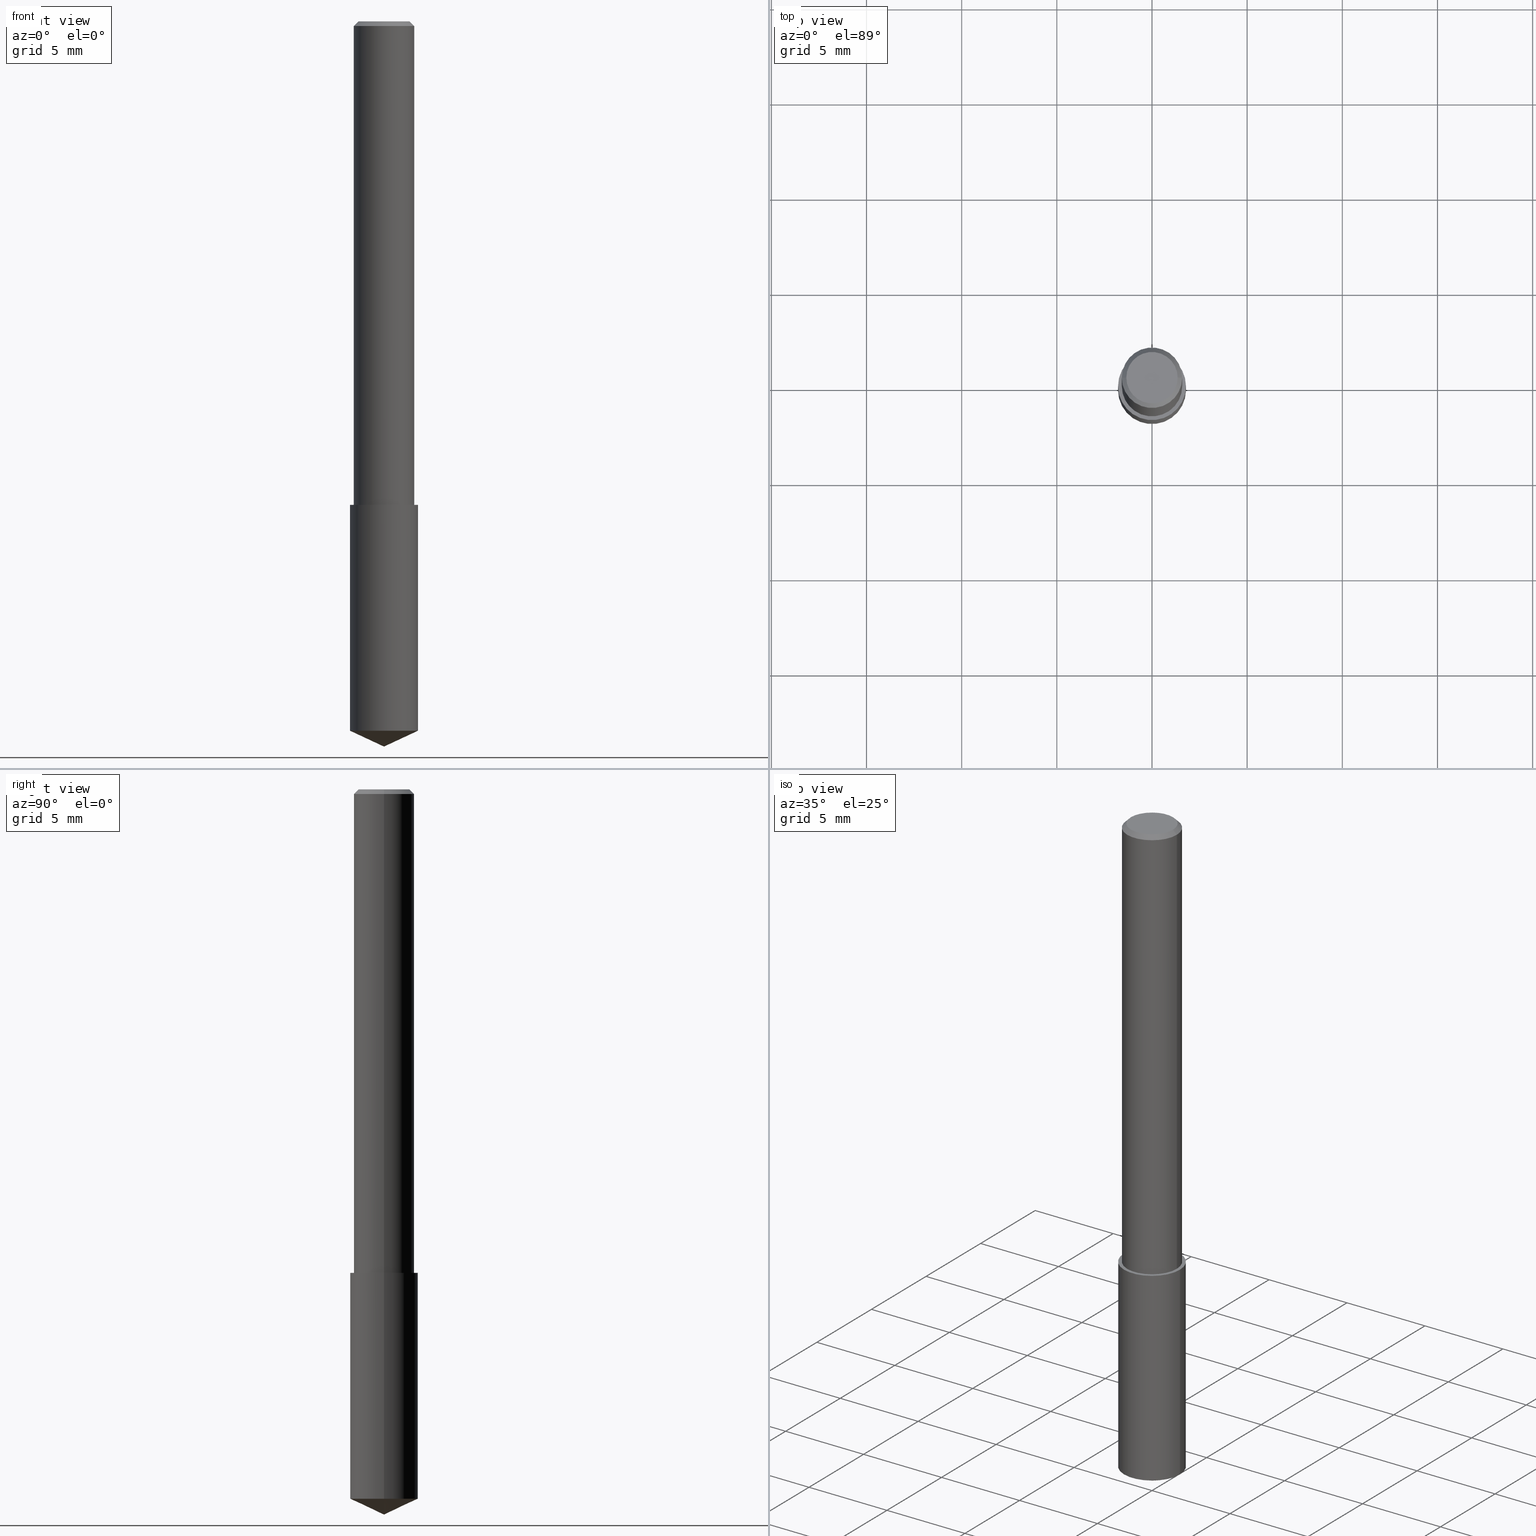
[diagram: canonical four-view strip — front | top / right | iso, engineering-drawing reading convention]
A machine part, canonical four-view strip (front | top / right | iso — engineering-drawing reading convention). The complete STEP part file that produces these views, byte-faithful:
ISO-10303-21;
HEADER;
FILE_DESCRIPTION (( 'STEP AP203' ),
    '1' );
FILE_NAME ('06080.STEP',
    '2024-04-30T18:19:43',
    ( '' ),
    ( '' ),
    'SwSTEP 2.0',
    'SolidWorks 2023',
    '' );
FILE_SCHEMA (( 'CONFIG_CONTROL_DESIGN' ));
ENDSEC;

DATA;
#1 = FACE_OUTER_BOUND ( 'NONE', #164, .T. ) ;
#2 = SHAPE_DEFINITION_REPRESENTATION ( #60, #43 ) ;
#3 = ORIENTED_EDGE ( 'NONE', *, *, #47, .T. ) ;
#4 = AXIS2_PLACEMENT_3D ( 'NONE', #227, #20, #202 ) ;
#5 = CYLINDRICAL_SURFACE ( 'NONE', #198, 0.06250000000000006939 ) ;
#6 = VERTEX_POINT ( 'NONE', #95 ) ;
#7 = DIRECTION ( 'NONE',  ( -2.445468806185136877E-29, 3.491481338843145188E-15, 1.000000000000000000 ) ) ;
#8 = VERTEX_POINT ( 'NONE', #278 ) ;
#9 = EDGE_CURVE ( 'NONE', #214, #322, #270, .T. ) ;
#10 = VERTEX_POINT ( 'NONE', #34 ) ;
#11 = DATE_AND_TIME ( #91, #316 ) ;
#12 = ORIENTED_EDGE ( 'NONE', *, *, #224, .T. ) ;
#13 = AXIS2_PLACEMENT_3D ( 'NONE', #111, #314, #231 ) ;
#14 = ORGANIZATION ( 'UNSPECIFIED', 'UNSPECIFIED', '' ) ;
#15 = ADVANCED_FACE ( 'NONE', ( #220 ), #141, .T. ) ;
#16 = CARTESIAN_POINT ( 'NONE',  ( 2.445468806185137438E-29, -3.491481338843146371E-15, -1.000000000000000222 ) ) ;
#17 = UNCERTAINTY_MEASURE_WITH_UNIT (LENGTH_MEASURE( 1.000000000000000082E-05 ), #181, 'distance_accuracy_value', 'NONE');
#18 = AXIS2_PLACEMENT_3D ( 'NONE', #261, #211, #264 ) ;
#19 = EDGE_CURVE ( 'NONE', #41, #88, #302, .T. ) ;
#20 = DIRECTION ( 'NONE',  ( -2.445468806185136597E-29, 3.491481338843145583E-15, 1.000000000000000000 ) ) ;
#21 = DATE_TIME_ROLE ( 'creation_date' ) ;
#22 = AXIS2_PLACEMENT_3D ( 'NONE', #81, #317, #233 ) ;
#23 = DIRECTION ( 'NONE',  ( -2.445468806185136597E-29, 3.491481338843145583E-15, 1.000000000000000000 ) ) ;
#24 = DIMENSIONAL_EXPONENTS ( 1.000000000000000000, 0.000000000000000000, 0.000000000000000000, 0.000000000000000000, 0.000000000000000000, 0.000000000000000000, 0.000000000000000000 ) ;
#25 = DIRECTION ( 'NONE',  ( -2.445468806185136597E-29, 3.491481338843145583E-15, 1.000000000000000000 ) ) ;
#26 = FACE_OUTER_BOUND ( 'NONE', #262, .T. ) ;
#27 = DIRECTION ( 'NONE',  ( -2.438088387897960049E-29, 3.491481338843145188E-15, 1.000000000000000000 ) ) ;
#28 = CIRCLE ( 'NONE', #18, 0.06250000000000000000 ) ;
#29 = DIRECTION ( 'NONE',  ( 1.000000000000000000, -6.982962677686265133E-15, 0.000000000000000000 ) ) ;
#30 = DATE_AND_TIME ( #138, #84 ) ;
#31 = APPROVAL ( #117, 'UNSPECIFIED' ) ;
#32 = LINE ( 'NONE', #339, #288 ) ;
#33 = ORIENTED_EDGE ( 'NONE', *, *, #19, .T. ) ;
#34 = CARTESIAN_POINT ( 'NONE',  ( 0.06250000000000012490, -3.927916506198539224E-15, -1.000000000000000222 ) ) ;
#35 = ADVANCED_FACE ( 'NONE', ( #254 ), #206, .F. ) ;
#36 = PERSON_AND_ORGANIZATION ( #244, #14 ) ;
#37 = SECURITY_CLASSIFICATION ( '', '', #146 ) ;
#38 = ORIENTED_EDGE ( 'NONE', *, *, #100, .T. ) ;
#39 = ORIENTED_EDGE ( 'NONE', *, *, #9, .T. ) ;
#40 = APPROVAL ( #257, 'UNSPECIFIED' ) ;
#41 = VERTEX_POINT ( 'NONE', #107 ) ;
#42 = CARTESIAN_POINT ( 'NONE',  ( 0.07030000000000000138, -3.982383615084490924E-15, -1.000000000000000222 ) ) ;
#43 = ADVANCED_BREP_SHAPE_REPRESENTATION ( '06080', ( #92, #90, #247 ), #184 ) ;
#44 = APPROVAL_PERSON_ORGANIZATION ( #169, #31, #265 ) ;
#45 = PERSON_AND_ORGANIZATION ( #244, #14 ) ;
#46 = LINE ( 'NONE', #289, #281 ) ;
#47 = EDGE_CURVE ( 'NONE', #246, #88, #46, .T. ) ;
#48 = CARTESIAN_POINT ( 'NONE',  ( 0.000000000000000000, 0.000000000000000000, 0.000000000000000000 ) ) ;
#49 = FACE_OUTER_BOUND ( 'NONE', #124, .T. ) ;
#50 = LOCAL_TIME ( 14, 19, 43.00000000000000000, #179 ) ;
#51 = DATE_AND_TIME ( #71, #201 ) ;
#52 = DIRECTION ( 'NONE',  ( 0.9063077870366496036, -4.853149677051374846E-15, 0.4226182617407001629 ) ) ;
#53 = DIRECTION ( 'NONE',  ( 1.000000000000000000, -6.982962677686265922E-15, 0.000000000000000000 ) ) ;
#54 = CC_DESIGN_PERSON_AND_ORGANIZATION_ASSIGNMENT ( #36, #275, ( #241 ) ) ;
#55 = DIRECTION ( 'NONE',  ( 1.000000000000000000, -6.982962677686265922E-15, 4.876176775795935793E-29 ) ) ;
#56 = DIRECTION ( 'NONE',  ( -2.445468806185136597E-29, 3.491481338843145583E-15, 1.000000000000000000 ) ) ;
#57 = CIRCLE ( 'NONE', #97, 0.06250000000000012490 ) ;
#58 = DIRECTION ( 'NONE',  ( -2.445468806185136597E-29, 3.491481338843145583E-15, 1.000000000000000000 ) ) ;
#59 = ORIENTED_EDGE ( 'NONE', *, *, #219, .T. ) ;
#60 = PRODUCT_DEFINITION_SHAPE ( 'NONE', 'NONE',  #282 ) ;
#61 = EDGE_CURVE ( 'NONE', #66, #217, #142, .T. ) ;
#62 = ORIENTED_EDGE ( 'NONE', *, *, #167, .F. ) ;
#63 = ORIENTED_EDGE ( 'NONE', *, *, #9, .F. ) ;
#64 = AXIS2_PLACEMENT_3D ( 'NONE', #105, #284, #113 ) ;
#65 = PERSON_AND_ORGANIZATION_ROLE ( 'design_supplier' ) ;
#66 = VERTEX_POINT ( 'NONE', #209 ) ;
#67 = ORIENTED_EDGE ( 'NONE', *, *, #160, .T. ) ;
#68 = AXIS2_PLACEMENT_3D ( 'NONE', #178, #73, #222 ) ;
#69 = ADVANCED_FACE ( 'NONE', ( #263 ), #272, .T. ) ;
#70 = DIRECTION ( 'NONE',  ( 1.000000000000000000, -6.982962677686265133E-15, 0.000000000000000000 ) ) ;
#71 = CALENDAR_DATE ( 2024, 30, 4 ) ;
#72 = FACE_OUTER_BOUND ( 'NONE', #323, .T. ) ;
#73 = DIRECTION ( 'NONE',  ( -2.445468806185136597E-29, 3.491481338843145583E-15, 1.000000000000000000 ) ) ;
#74 = APPROVAL_ROLE ( '' ) ;
#75 = CARTESIAN_POINT ( 'NONE',  ( 2.292627005798582375E-31, -3.273263755165473266E-17, -0.009375000000000069042 ) ) ;
#76 = DIRECTION ( 'NONE',  ( 1.000000000000000000, -6.982962677686265133E-15, 0.000000000000000000 ) ) ;
#77 = APPROVAL_PERSON_ORGANIZATION ( #252, #40, #129 ) ;
#78 = COORDINATED_UNIVERSAL_TIME_OFFSET ( 5, 0, .BEHIND. ) ;
#79 = DIRECTION ( 'NONE',  ( -1.000000000000000000, 6.982962677686265922E-15, -4.876176775795935793E-29 ) ) ;
#80 = DIRECTION ( 'NONE',  ( -2.445468806185136877E-29, 3.491481338843145188E-15, 1.000000000000000000 ) ) ;
#81 = CARTESIAN_POINT ( 'NONE',  ( 3.802253484767616904E-29, -1.548488455724893481E-15, -1.000000000000000222 ) ) ;
#82 = FACE_OUTER_BOUND ( 'NONE', #140, .T. ) ;
#83 = ORIENTED_EDGE ( 'NONE', *, *, #212, .F. ) ;
#84 = LOCAL_TIME ( 14, 19, 43.00000000000000000, #319 ) ;
#85 = AXIS2_PLACEMENT_3D ( 'NONE', #269, #318, #235 ) ;
#86 = DIRECTION ( 'NONE',  ( -2.445468806185136597E-29, 3.491481338843145583E-15, 1.000000000000000000 ) ) ;
#87 = EDGE_CURVE ( 'NONE', #6, #325, #287, .T. ) ;
#88 = VERTEX_POINT ( 'NONE', #253 ) ;
#89 = CARTESIAN_POINT ( 'NONE',  ( 0.000000000000000000, 0.000000000000000000, 0.000000000000000000 ) ) ;
#90 = MANIFOLD_SOLID_BREP ( 'Body-Move/Copy2[2]', #285 ) ;
#91 = CALENDAR_DATE ( 2024, 30, 4 ) ;
#92 = MANIFOLD_SOLID_BREP ( 'Body-Move/Copy2[1]', #139 ) ;
#93 = ORIENTED_EDGE ( 'NONE', *, *, #219, .F. ) ;
#94 = DATE_AND_TIME ( #121, #338 ) ;
#95 = CARTESIAN_POINT ( 'NONE',  ( -0.05312499999999999861, 3.873362110279099094E-16, 3.061616995216862494E-21 ) ) ;
#96 = CC_DESIGN_APPROVAL ( #31, ( #37 ) ) ;
#97 = AXIS2_PLACEMENT_3D ( 'NONE', #286, #25, #131 ) ;
#98 = ORIENTED_EDGE ( 'NONE', *, *, #19, .F. ) ;
#99 = CC_DESIGN_PERSON_AND_ORGANIZATION_ASSIGNMENT ( #45, #185, ( #282 ) ) ;
#100 = EDGE_CURVE ( 'NONE', #10, #322, #158, .T. ) ;
#101 = CARTESIAN_POINT ( 'NONE',  ( 0.06250000000000000000, -4.691678049070464390E-16, -0.009375000000000069042 ) ) ;
#102 = COORDINATED_UNIVERSAL_TIME_OFFSET ( 5, 0, .BEHIND. ) ;
#103 = CIRCLE ( 'NONE', #333, 0.06250000000000000000 ) ;
#104 = CARTESIAN_POINT ( 'NONE',  ( 2.445468806185137438E-29, -3.491481338843146371E-15, -1.000000000000000222 ) ) ;
#105 = CARTESIAN_POINT ( 'NONE',  ( 2.292627005798582375E-31, -3.273263755165473266E-17, -0.009375000000000069042 ) ) ;
#106 = APPLICATION_PROTOCOL_DEFINITION ( 'international standard', 'config_control_design', 1994, #232 ) ;
#107 = CARTESIAN_POINT ( 'NONE',  ( -0.07030000000000000138, -4.623254719616837118E-15, -1.467218571631703661 ) ) ;
#108 = CC_DESIGN_PERSON_AND_ORGANIZATION_ASSIGNMENT ( #326, #65, ( #241 ) ) ;
#109 = CONICAL_SURFACE ( 'NONE', #134, 84.42940631927376671, 1.134464013796313342 ) ;
#110 = AXIS2_PLACEMENT_3D ( 'NONE', #186, #27, #55 ) ;
#111 = CARTESIAN_POINT ( 'NONE',  ( 2.292627005798582375E-31, -3.273263755165473266E-17, -0.009375000000000069042 ) ) ;
#112 = APPLICATION_PROTOCOL_DEFINITION ( 'international standard', 'config_control_design', 1994, #248 ) ;
#113 = DIRECTION ( 'NONE',  ( -1.000000000000000000, 6.982962677686266711E-15, 0.000000000000000000 ) ) ;
#114 = CYLINDRICAL_SURFACE ( 'NONE', #327, 0.06250000000000006939 ) ;
#115 = ORIENTED_EDGE ( 'NONE', *, *, #204, .F. ) ;
#116 = ADVANCED_FACE ( 'NONE', ( #72 ), #126, .T. ) ;
#117 = APPROVAL_STATUS ( 'not_yet_approved' ) ;
#118 = ORIENTED_EDGE ( 'NONE', *, *, #212, .T. ) ;
#119 = CARTESIAN_POINT ( 'NONE',  ( 3.668203209277704895E-29, -5.237222008264718177E-15, -1.500000000000000222 ) ) ;
#120 = DIRECTION ( 'NONE',  ( 0.7071067811865450192, -7.319954787623246579E-15, -0.7071067811865500152 ) ) ;
#121 = CALENDAR_DATE ( 2024, 30, 4 ) ;
#122 = ORIENTED_EDGE ( 'NONE', *, *, #100, .F. ) ;
#123 = APPROVAL ( #203, 'UNSPECIFIED' ) ;
#124 = EDGE_LOOP ( 'NONE', ( #170, #12, #190 ) ) ;
#125 = FACE_OUTER_BOUND ( 'NONE', #171, .T. ) ;
#126 = CONICAL_SURFACE ( 'NONE', #64, 0.06250000000000000000, 0.7853981633974447263 ) ;
#127 = CC_DESIGN_APPROVAL ( #123, ( #282 ) ) ;
#128 =( LENGTH_UNIT ( ) NAMED_UNIT ( * ) SI_UNIT ( $, .METRE. ) );
#129 = APPROVAL_ROLE ( '' ) ;
#130 = CARTESIAN_POINT ( 'NONE',  ( 0.06250000000000006939, -4.364351673553921624E-16, 3.047610484872463374E-30 ) ) ;
#131 = DIRECTION ( 'NONE',  ( 1.000000000000000000, -6.982962677686264344E-15, 0.000000000000000000 ) ) ;
#132 = EDGE_CURVE ( 'NONE', #6, #214, #313, .T. ) ;
#133 = CARTESIAN_POINT ( 'NONE',  ( -3.743544432386672853E-50, 5.344789307371238476E-36, 1.530808498934197599E-21 ) ) ;
#134 = AXIS2_PLACEMENT_3D ( 'NONE', #258, #334, #53 ) ;
#135 = CIRCLE ( 'NONE', #85, 0.05312499999999999861 ) ;
#136 = AXIS2_PLACEMENT_3D ( 'NONE', #188, #23, #70 ) ;
#137 = CARTESIAN_POINT ( 'NONE',  ( 0.05312499999999999861, -4.129888592719939842E-16, 3.061617000609493422E-21 ) ) ;
#138 = CALENDAR_DATE ( 2024, 30, 4 ) ;
#139 = CLOSED_SHELL ( 'NONE', ( #332, #149, #324, #15, #35 ) ) ;
#140 = EDGE_LOOP ( 'NONE', ( #115, #67, #38, #93 ) ) ;
#141 = CYLINDRICAL_SURFACE ( 'NONE', #154, 0.07030000000000000138 ) ;
#142 = CIRCLE ( 'NONE', #136, 0.07030000000000000138 ) ;
#143 = COORDINATED_UNIVERSAL_TIME_OFFSET ( 5, 0, .BEHIND. ) ;
#144 = ORIENTED_EDGE ( 'NONE', *, *, #87, .F. ) ;
#145 = DESIGN_CONTEXT ( 'detailed design', #248, 'design' ) ;
#146 = SECURITY_CLASSIFICATION_LEVEL ( 'unclassified' ) ;
#147 = EDGE_LOOP ( 'NONE', ( #187, #274 ) ) ;
#148 = ORIENTED_EDGE ( 'NONE', *, *, #87, .T. ) ;
#149 = ADVANCED_FACE ( 'NONE', ( #49 ), #109, .T. ) ;
#150 = DIRECTION ( 'NONE',  ( 1.000000000000000000, -6.982962677686265922E-15, 0.000000000000000000 ) ) ;
#151 = DATE_AND_TIME ( #256, #50 ) ;
#152 = ADVANCED_FACE ( 'NONE', ( #26 ), #309, .F. ) ;
#153 = MECHANICAL_CONTEXT ( 'NONE', #232, 'mechanical' ) ;
#154 = AXIS2_PLACEMENT_3D ( 'NONE', #16, #291, #76 ) ;
#155 = APPROVAL_PERSON_ORGANIZATION ( #267, #123, #74 ) ;
#156 = CC_DESIGN_PERSON_AND_ORGANIZATION_ASSIGNMENT ( #245, #193, ( #37 ) ) ;
#157 = APPROVAL_DATE_TIME ( #51, #123 ) ;
#158 = LINE ( 'NONE', #130, #173 ) ;
#159 = FACE_OUTER_BOUND ( 'NONE', #328, .T. ) ;
#160 = EDGE_CURVE ( 'NONE', #8, #10, #249, .T. ) ;
#161 = VECTOR ( 'NONE', #310, 39.37007874015748143 ) ;
#162 = DIRECTION ( 'NONE',  ( 1.000000000000000000, -6.982962677686266711E-15, 4.876176775795935793E-29 ) ) ;
#163 = ORIENTED_EDGE ( 'NONE', *, *, #194, .T. ) ;
#164 = EDGE_LOOP ( 'NONE', ( #242, #320, #293, #122 ) ) ;
#165 = CARTESIAN_POINT ( 'NONE',  ( -0.07030000000000000138, -2.991969795603796128E-15, -1.000000000000000222 ) ) ;
#166 = ORIENTED_EDGE ( 'NONE', *, *, #224, .F. ) ;
#167 = EDGE_CURVE ( 'NONE', #10, #8, #57, .T. ) ;
#168 = AXIS2_PLACEMENT_3D ( 'NONE', #208, #205, #290 ) ;
#169 = PERSON_AND_ORGANIZATION ( #244, #14 ) ;
#170 = ORIENTED_EDGE ( 'NONE', *, *, #47, .F. ) ;
#171 = EDGE_LOOP ( 'NONE', ( #195, #118, #199, #243 ) ) ;
#172 = ADVANCED_FACE ( 'NONE', ( #159 ), #311, .F. ) ;
#173 = VECTOR ( 'NONE', #177, 39.37007874015748143 ) ;
#174 = VECTOR ( 'NONE', #80, 39.37007874015748143 ) ;
#175 = AXIS2_PLACEMENT_3D ( 'NONE', #213, #86, #176 ) ;
#176 = DIRECTION ( 'NONE',  ( 1.000000000000000000, -6.982962677686265133E-15, 0.000000000000000000 ) ) ;
#177 = DIRECTION ( 'NONE',  ( -2.445468806185136877E-29, 3.491481338843145188E-15, 1.000000000000000000 ) ) ;
#178 = CARTESIAN_POINT ( 'NONE',  ( 2.445468806185137438E-29, -3.491481338843146371E-15, -1.000000000000000222 ) ) ;
#179 = COORDINATED_UNIVERSAL_TIME_OFFSET ( 5, 0, .BEHIND. ) ;
#180 = DIRECTION ( 'NONE',  ( -2.445468806185136597E-29, 3.491481338843145583E-15, 1.000000000000000000 ) ) ;
#181 =( CONVERSION_BASED_UNIT ( 'INCH', #226 ) LENGTH_UNIT ( ) NAMED_UNIT ( #24 ) );
#182 = DIRECTION ( 'NONE',  ( 0.000000000000000000, 0.000000000000000000, 1.000000000000000000 ) ) ;
#183 = DIRECTION ( 'NONE',  ( -2.445468806185136597E-29, 3.491481338843145583E-15, 1.000000000000000000 ) ) ;
#184 =( GEOMETRIC_REPRESENTATION_CONTEXT ( 3 ) GLOBAL_UNCERTAINTY_ASSIGNED_CONTEXT ( ( #17 ) ) GLOBAL_UNIT_ASSIGNED_CONTEXT ( ( #181, #251, #228 ) ) REPRESENTATION_CONTEXT ( 'NONE', 'WORKASPACE' ) );
#185 = PERSON_AND_ORGANIZATION_ROLE ( 'creator' ) ;
#186 = CARTESIAN_POINT ( 'NONE',  ( 2.445468806185137438E-29, -3.491481338843146371E-15, -1.000000000000000222 ) ) ;
#187 = ORIENTED_EDGE ( 'NONE', *, *, #61, .T. ) ;
#188 = CARTESIAN_POINT ( 'NONE',  ( 2.445468806185136877E-29, -3.491481338843145977E-15, -1.000000000000000222 ) ) ;
#189 = DIRECTION ( 'NONE',  ( -2.445468806185136597E-29, 3.491481338843145583E-15, 1.000000000000000000 ) ) ;
#190 = ORIENTED_EDGE ( 'NONE', *, *, #277, .F. ) ;
#191 = ORIENTED_EDGE ( 'NONE', *, *, #306, .T. ) ;
#192 = CARTESIAN_POINT ( 'NONE',  ( 3.588037248780843606E-29, -5.122766262856188544E-15, -1.467218571631703661 ) ) ;
#193 = PERSON_AND_ORGANIZATION_ROLE ( 'classification_officer' ) ;
#194 = EDGE_CURVE ( 'NONE', #322, #325, #103, .T. ) ;
#195 = ORIENTED_EDGE ( 'NONE', *, *, #277, .T. ) ;
#196 = AXIS2_PLACEMENT_3D ( 'NONE', #104, #180, #234 ) ;
#197 = EDGE_LOOP ( 'NONE', ( #63, #301, #148, #59 ) ) ;
#198 = AXIS2_PLACEMENT_3D ( 'NONE', #295, #58, #162 ) ;
#199 = ORIENTED_EDGE ( 'NONE', *, *, #61, .F. ) ;
#200 = CC_DESIGN_DATE_AND_TIME_ASSIGNMENT ( #94, #298, ( #37 ) ) ;
#201 = LOCAL_TIME ( 14, 19, 43.00000000000000000, #78 ) ;
#202 = DIRECTION ( 'NONE',  ( 1.000000000000000000, -6.982962677686265133E-15, 0.000000000000000000 ) ) ;
#203 = APPROVAL_STATUS ( 'not_yet_approved' ) ;
#204 = EDGE_CURVE ( 'NONE', #8, #325, #32, .T. ) ;
#205 = DIRECTION ( 'NONE',  ( -2.445468806185136597E-29, 3.491481338843145583E-15, 1.000000000000000000 ) ) ;
#206 = PLANE ( 'NONE',  #22 ) ;
#207 = DIRECTION ( 'NONE',  ( -2.445468806185136597E-29, 3.491481338843145583E-15, 1.000000000000000000 ) ) ;
#208 = CARTESIAN_POINT ( 'NONE',  ( -7.487088864773345706E-50, 1.068957861474247695E-35, 3.061616997868395197E-21 ) ) ;
#209 = CARTESIAN_POINT ( 'NONE',  ( 0.07030000000000000138, -3.982383615084490136E-15, -1.000000000000000222 ) ) ;
#210 = DIRECTION ( 'NONE',  ( -0.7071067811865450192, 2.468850131082230634E-15, -0.7071067811865500152 ) ) ;
#211 = DIRECTION ( 'NONE',  ( -2.445468806185136597E-29, 3.491481338843145583E-15, 1.000000000000000000 ) ) ;
#212 = EDGE_CURVE ( 'NONE', #41, #217, #215, .T. ) ;
#213 = CARTESIAN_POINT ( 'NONE',  ( 2.445468806185136877E-29, -3.491481338843145977E-15, -1.000000000000000222 ) ) ;
#214 = VERTEX_POINT ( 'NONE', #137 ) ;
#215 = LINE ( 'NONE', #165, #174 ) ;
#216 = ORIENTED_EDGE ( 'NONE', *, *, #239, .T. ) ;
#217 = VERTEX_POINT ( 'NONE', #321 ) ;
#218 = ORIENTED_EDGE ( 'NONE', *, *, #132, .T. ) ;
#219 = EDGE_CURVE ( 'NONE', #325, #322, #28, .T. ) ;
#220 = FACE_OUTER_BOUND ( 'NONE', #238, .T. ) ;
#221 = AXIS2_PLACEMENT_3D ( 'NONE', #225, #207, #150 ) ;
#222 = DIRECTION ( 'NONE',  ( 1.000000000000000000, -6.982962677686265133E-15, 0.000000000000000000 ) ) ;
#223 = CIRCLE ( 'NONE', #175, 0.07030000000000000138 ) ;
#224 = EDGE_CURVE ( 'NONE', #246, #41, #271, .T. ) ;
#225 = CARTESIAN_POINT ( 'NONE',  ( -9.261009624683002666E-28, 1.322226732217803884E-13, 37.87007874015748143 ) ) ;
#226 = LENGTH_MEASURE_WITH_UNIT ( LENGTH_MEASURE( 0.02539999999999999897 ), #128 );
#227 = CARTESIAN_POINT ( 'NONE',  ( 3.588037248780843606E-29, -5.122766262856188544E-15, -1.467218571631703661 ) ) ;
#228 =( NAMED_UNIT ( * ) SI_UNIT ( $, .STERADIAN. ) SOLID_ANGLE_UNIT ( ) );
#229 = CC_DESIGN_DATE_AND_TIME_ASSIGNMENT ( #151, #21, ( #282 ) ) ;
#230 = CARTESIAN_POINT ( 'NONE',  ( -0.06250000000000000000, 4.037025298037369491E-16, -0.009375000000000069042 ) ) ;
#231 = DIRECTION ( 'NONE',  ( -1.000000000000000000, 6.982962677686266711E-15, 0.000000000000000000 ) ) ;
#232 = APPLICATION_CONTEXT ( 'configuration controlled 3d designs of mechanical parts and assemblies' ) ;
#233 = DIRECTION ( 'NONE',  ( -1.000000000000000000, 6.982962677686265922E-15, -4.876176775795935793E-29 ) ) ;
#234 = DIRECTION ( 'NONE',  ( 1.000000000000000000, -6.982962677686264344E-15, 0.000000000000000000 ) ) ;
#235 = DIRECTION ( 'NONE',  ( 1.000000000000000000, -6.982962677686266711E-15, 4.876176628004948512E-29 ) ) ;
#236 = APPROVAL_DATE_TIME ( #30, #31 ) ;
#237 = DIRECTION ( 'NONE',  ( 1.000000000000000000, -6.982962677686266711E-15, 0.000000000000000000 ) ) ;
#238 = EDGE_LOOP ( 'NONE', ( #83, #33, #191, #276 ) ) ;
#239 = EDGE_CURVE ( 'NONE', #214, #6, #135, .T. ) ;
#240 = CARTESIAN_POINT ( 'NONE',  ( 3.668203209277704895E-29, -5.237222008264718177E-15, -1.500000000000000222 ) ) ;
#241 = PRODUCT_DEFINITION_FORMATION_WITH_SPECIFIED_SOURCE ( 'ANY', '', #303, .NOT_KNOWN. ) ;
#242 = ORIENTED_EDGE ( 'NONE', *, *, #167, .T. ) ;
#243 = ORIENTED_EDGE ( 'NONE', *, *, #306, .F. ) ;
#244 = PERSON ( 'UNSPECIFIED', 'UNSPECIFIED', 'UNSPECIFIED', ('UNSPECIFIED'), ('UNSPECIFIED'), ('UNSPECIFIED') ) ;
#245 = PERSON_AND_ORGANIZATION ( #244, #14 ) ;
#246 = VERTEX_POINT ( 'NONE', #119 ) ;
#247 = AXIS2_PLACEMENT_3D ( 'NONE', #48, #182, #255 ) ;
#248 = APPLICATION_CONTEXT ( 'configuration controlled 3d designs of mechanical parts and assemblies' ) ;
#249 = CIRCLE ( 'NONE', #196, 0.06250000000000012490 ) ;
#250 = AXIS2_PLACEMENT_3D ( 'NONE', #133, #260, #79 ) ;
#251 =( NAMED_UNIT ( * ) PLANE_ANGLE_UNIT ( ) SI_UNIT ( $, .RADIAN. ) );
#252 = PERSON_AND_ORGANIZATION ( #244, #14 ) ;
#253 = CARTESIAN_POINT ( 'NONE',  ( 0.07030000000000000138, -5.613668539097532703E-15, -1.467218571631703661 ) ) ;
#254 = FACE_OUTER_BOUND ( 'NONE', #147, .T. ) ;
#255 = DIRECTION ( 'NONE',  ( 1.000000000000000000, 0.000000000000000000, 0.000000000000000000 ) ) ;
#256 = CALENDAR_DATE ( 2024, 30, 4 ) ;
#257 = APPROVAL_STATUS ( 'not_yet_approved' ) ;
#258 = CARTESIAN_POINT ( 'NONE',  ( -9.261009624683002666E-28, 1.322226732217803884E-13, 37.87007874015748143 ) ) ;
#259 = PRODUCT_RELATED_PRODUCT_CATEGORY ( 'detail', '', ( #303 ) ) ;
#260 = DIRECTION ( 'NONE',  ( 2.438088387897960049E-29, -3.491481338843145188E-15, -1.000000000000000000 ) ) ;
#261 = CARTESIAN_POINT ( 'NONE',  ( 2.292627005798582375E-31, -3.273263755165473266E-17, -0.009375000000000069042 ) ) ;
#262 = EDGE_LOOP ( 'NONE', ( #218, #216 ) ) ;
#263 = FACE_OUTER_BOUND ( 'NONE', #197, .T. ) ;
#264 = DIRECTION ( 'NONE',  ( 1.000000000000000000, -6.982962677686266711E-15, 0.000000000000000000 ) ) ;
#265 = APPROVAL_ROLE ( '' ) ;
#266 = ADVANCED_FACE ( 'NONE', ( #82 ), #114, .T. ) ;
#267 = PERSON_AND_ORGANIZATION ( #244, #14 ) ;
#268 = ORIENTED_EDGE ( 'NONE', *, *, #160, .F. ) ;
#269 = CARTESIAN_POINT ( 'NONE',  ( -7.487088864773345706E-50, 1.068957861474247695E-35, 3.061616997868395197E-21 ) ) ;
#270 = LINE ( 'NONE', #299, #329 ) ;
#271 = LINE ( 'NONE', #240, #273 ) ;
#272 = CONICAL_SURFACE ( 'NONE', #13, 0.06250000000000000000, 0.7853981633974447263 ) ;
#273 = VECTOR ( 'NONE', #315, 39.37007874015748143 ) ;
#274 = ORIENTED_EDGE ( 'NONE', *, *, #300, .T. ) ;
#275 = PERSON_AND_ORGANIZATION_ROLE ( 'creator' ) ;
#276 = ORIENTED_EDGE ( 'NONE', *, *, #300, .F. ) ;
#277 = EDGE_CURVE ( 'NONE', #88, #41, #307, .T. ) ;
#278 = CARTESIAN_POINT ( 'NONE',  ( -0.06250000000000012490, -1.318017778347335489E-15, -1.000000000000000222 ) ) ;
#279 = CC_DESIGN_SECURITY_CLASSIFICATION ( #37, ( #241 ) ) ;
#280 = CONICAL_SURFACE ( 'NONE', #221, 84.42940631927376671, 1.134464013796313342 ) ;
#281 = VECTOR ( 'NONE', #52, 39.37007874015748143 ) ;
#282 = PRODUCT_DEFINITION ( 'UNKNOWN', '', #241, #145 ) ;
#283 = ADVANCED_FACE ( 'NONE', ( #1 ), #5, .T. ) ;
#284 = DIRECTION ( 'NONE',  ( 2.445468806185136597E-29, -3.491481338843145583E-15, -1.000000000000000000 ) ) ;
#285 = CLOSED_SHELL ( 'NONE', ( #116, #283, #172, #266, #69, #152 ) ) ;
#286 = CARTESIAN_POINT ( 'NONE',  ( 2.445468806185137438E-29, -3.491481338843146371E-15, -1.000000000000000222 ) ) ;
#287 = LINE ( 'NONE', #230, #340 ) ;
#288 = VECTOR ( 'NONE', #7, 39.37007874015748143 ) ;
#289 = CARTESIAN_POINT ( 'NONE',  ( 3.668203209277704895E-29, -5.237222008264718177E-15, -1.500000000000000222 ) ) ;
#290 = DIRECTION ( 'NONE',  ( 1.000000000000000000, -6.982962677686266711E-15, 4.876176628004948512E-29 ) ) ;
#291 = DIRECTION ( 'NONE',  ( -2.445468806185136597E-29, 3.491481338843145583E-15, 1.000000000000000000 ) ) ;
#292 = DIRECTION ( 'NONE',  ( 1.000000000000000000, -6.982962677686266711E-15, 4.876176775795935793E-29 ) ) ;
#293 = ORIENTED_EDGE ( 'NONE', *, *, #194, .F. ) ;
#294 = EDGE_LOOP ( 'NONE', ( #166, #3, #98 ) ) ;
#295 = CARTESIAN_POINT ( 'NONE',  ( 0.000000000000000000, 0.000000000000000000, 0.000000000000000000 ) ) ;
#296 = APPROVAL_DATE_TIME ( #11, #40 ) ;
#297 = ORIENTED_EDGE ( 'NONE', *, *, #239, .F. ) ;
#298 = DATE_TIME_ROLE ( 'classification_date' ) ;
#299 = CARTESIAN_POINT ( 'NONE',  ( 0.06250000000000000000, -4.615137624123754923E-16, -0.009375000000000069042 ) ) ;
#300 = EDGE_CURVE ( 'NONE', #217, #66, #223, .T. ) ;
#301 = ORIENTED_EDGE ( 'NONE', *, *, #132, .F. ) ;
#302 = CIRCLE ( 'NONE', #4, 0.07030000000000000138 ) ;
#303 = PRODUCT ( '06080', '06080', '', ( #153 ) ) ;
#304 = AXIS2_PLACEMENT_3D ( 'NONE', #192, #56, #29 ) ;
#305 = CARTESIAN_POINT ( 'NONE',  ( -0.06250000000000000000, -1.318017778347336672E-15, -0.009375000000000069042 ) ) ;
#306 = EDGE_CURVE ( 'NONE', #88, #66, #335, .T. ) ;
#307 = CIRCLE ( 'NONE', #304, 0.07030000000000000138 ) ;
#308 = FACE_OUTER_BOUND ( 'NONE', #294, .T. ) ;
#309 = PLANE ( 'NONE',  #250 ) ;
#310 = DIRECTION ( 'NONE',  ( -2.445468806185136877E-29, 3.491481338843145188E-15, 1.000000000000000000 ) ) ;
#311 = PLANE ( 'NONE',  #110 ) ;
#312 = PERSON_AND_ORGANIZATION_ROLE ( 'design_owner' ) ;
#313 = CIRCLE ( 'NONE', #168, 0.05312499999999999861 ) ;
#314 = DIRECTION ( 'NONE',  ( 2.445468806185136597E-29, -3.491481338843145583E-15, -1.000000000000000000 ) ) ;
#315 = DIRECTION ( 'NONE',  ( -0.9063077870366496036, 7.915267918739016209E-15, 0.4226182617407001629 ) ) ;
#316 = LOCAL_TIME ( 14, 19, 43.00000000000000000, #102 ) ;
#317 = DIRECTION ( 'NONE',  ( 2.438088387897960049E-29, -3.491481338843145188E-15, -1.000000000000000000 ) ) ;
#318 = DIRECTION ( 'NONE',  ( -2.445468806185136597E-29, 3.491481338843145583E-15, 1.000000000000000000 ) ) ;
#319 = COORDINATED_UNIVERSAL_TIME_OFFSET ( 5, 0, .BEHIND. ) ;
#320 = ORIENTED_EDGE ( 'NONE', *, *, #204, .T. ) ;
#321 = CARTESIAN_POINT ( 'NONE',  ( -0.07030000000000000138, -3.807612257610317017E-15, -1.000000000000000222 ) ) ;
#322 = VERTEX_POINT ( 'NONE', #101 ) ;
#323 = EDGE_LOOP ( 'NONE', ( #297, #39, #163, #144 ) ) ;
#324 = ADVANCED_FACE ( 'NONE', ( #308 ), #280, .T. ) ;
#325 = VERTEX_POINT ( 'NONE', #305 ) ;
#326 = PERSON_AND_ORGANIZATION ( #244, #14 ) ;
#327 = AXIS2_PLACEMENT_3D ( 'NONE', #89, #189, #292 ) ;
#328 = EDGE_LOOP ( 'NONE', ( #62, #268 ) ) ;
#329 = VECTOR ( 'NONE', #120, 39.37007874015748143 ) ;
#330 = CC_DESIGN_APPROVAL ( #40, ( #241 ) ) ;
#331 = CYLINDRICAL_SURFACE ( 'NONE', #68, 0.07030000000000000138 ) ;
#332 = ADVANCED_FACE ( 'NONE', ( #125 ), #331, .T. ) ;
#333 = AXIS2_PLACEMENT_3D ( 'NONE', #75, #183, #237 ) ;
#334 = DIRECTION ( 'NONE',  ( -2.445468806185136597E-29, 3.491481338843145583E-15, 1.000000000000000000 ) ) ;
#335 = LINE ( 'NONE', #42, #161 ) ;
#336 = PERSON_AND_ORGANIZATION ( #244, #14 ) ;
#337 = CC_DESIGN_PERSON_AND_ORGANIZATION_ASSIGNMENT ( #336, #312, ( #303 ) ) ;
#338 = LOCAL_TIME ( 14, 19, 43.00000000000000000, #143 ) ;
#339 = CARTESIAN_POINT ( 'NONE',  ( -0.06250000000000006939, 4.440892098500631092E-16, -3.074334431409319267E-30 ) ) ;
#340 = VECTOR ( 'NONE', #210, 39.37007874015748143 ) ;
ENDSEC;
END-ISO-10303-21;
